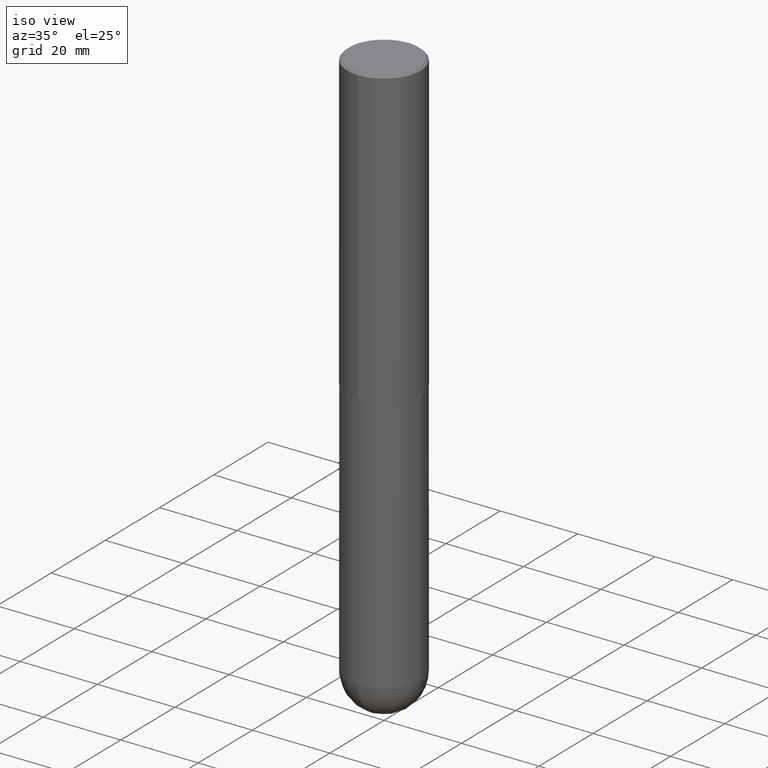
[diagram: clean part render]
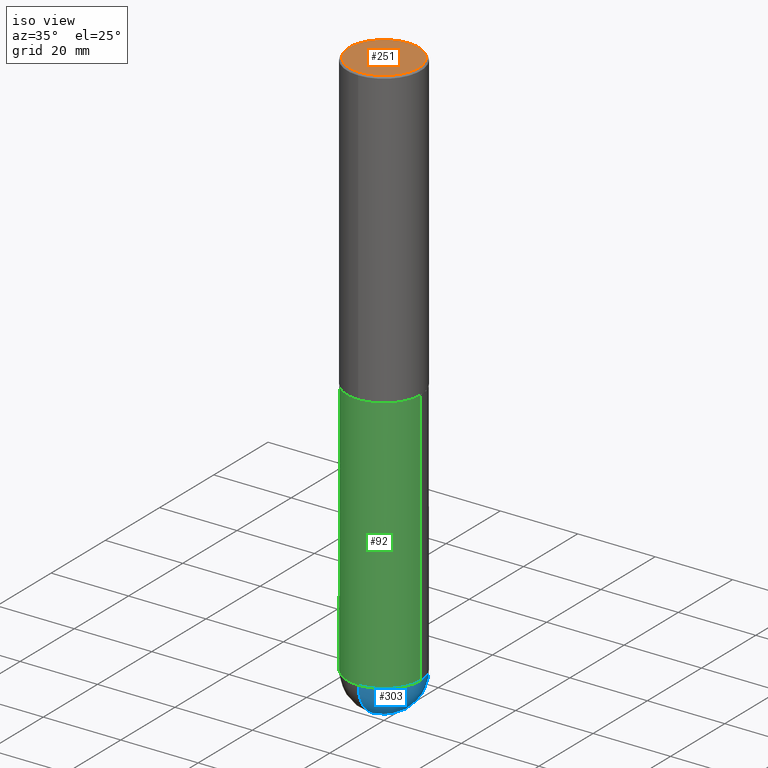
[diagram: same view with three faces highlighted in distinct colors, each labeled with its STEP entity id]
A machine part, iso view with three faces highlighted in distinct colors.
Their STEP definitions:

[orange] entity #251 — the highlighted planar face has unit normal (0, -0, -1).
#15 = VERTEX_POINT ( 'NONE', #324 ) ;
#34 = CARTESIAN_POINT ( 'NONE',  ( 2.478951750578630520E-15, 0.3550000000000009259, -1.713224165233305513E-15 ) ) ;
#42 = ORIENTED_EDGE ( 'NONE', *, *, #385, .T. ) ;
#71 = DIRECTION ( 'NONE',  ( 2.445691460240369509E-29, -3.491162485563369808E-15, -1.000000000000000000 ) ) ;
#102 = DIRECTION ( 'NONE',  ( -6.982962677686265133E-15, -1.000000000000000000, 3.491162485563369808E-15 ) ) ;
#103 = AXIS2_PLACEMENT_3D ( 'NONE', #305, #119, #353 ) ;
#119 = DIRECTION ( 'NONE',  ( -2.445691460240369790E-29, 3.491162485563369808E-15, 1.000000000000000000 ) ) ;
#133 = CARTESIAN_POINT ( 'NONE',  ( 2.317837963926793501E-44, -3.308654864616693600E-30, -9.477229657166117026E-16 ) ) ;
#148 = PLANE ( 'NONE',  #409 ) ;
#153 = CIRCLE ( 'NONE', #343, 0.3550000000000009259 ) ;
#157 = FACE_OUTER_BOUND ( 'NONE', #240, .T. ) ;
#164 = DIRECTION ( 'NONE',  ( -2.445691460240369790E-29, 3.491162485563369808E-15, 1.000000000000000000 ) ) ;
#207 = ORIENTED_EDGE ( 'NONE', *, *, #322, .T. ) ;
#240 = EDGE_LOOP ( 'NONE', ( #207, #42 ) ) ;
#251 = ADVANCED_FACE ( 'NONE', ( #157 ), #148, .F. ) ;
#272 = CIRCLE ( 'NONE', #103, 0.3550000000000009259 ) ;
#305 = CARTESIAN_POINT ( 'NONE',  ( 2.317837963926793501E-44, -3.308654864616693600E-30, -9.477229657166117026E-16 ) ) ;
#322 = EDGE_CURVE ( 'NONE', #15, #405, #272, .T. ) ;
#324 = CARTESIAN_POINT ( 'NONE',  ( 2.548781377355490268E-15, 0.3550000000000009259, -2.187085648091611168E-15 ) ) ;
#343 = AXIS2_PLACEMENT_3D ( 'NONE', #133, #164, #102 ) ;
#349 = DIRECTION ( 'NONE',  ( 6.982962677686265922E-15, 1.000000000000000000, -3.491162485563369808E-15 ) ) ;
#353 = DIRECTION ( 'NONE',  ( -6.982962677686265133E-15, -1.000000000000000000, 3.491162485563369808E-15 ) ) ;
#385 = EDGE_CURVE ( 'NONE', #405, #15, #153, .T. ) ;
#386 = CARTESIAN_POINT ( 'NONE',  ( -2.504081769186611371E-15, -0.3550000000000009259, 2.916397166583878117E-16 ) ) ;
#405 = VERTEX_POINT ( 'NONE', #386 ) ;
#409 = AXIS2_PLACEMENT_3D ( 'NONE', #34, #71, #349 ) ;

[blue] entity #303 — the highlighted spherical surface has radius 9.525 mm.
#2 = CARTESIAN_POINT ( 'NONE',  ( 0.3750000000000001110, -1.767562427789342178E-14, -5.625000000000000000 ) ) ;
#5 = VERTEX_POINT ( 'NONE', #10 ) ;
#10 = CARTESIAN_POINT ( 'NONE',  ( 2.618611004132489250E-15, 0.3749999999999805711, -5.625000000000000888 ) ) ;
#17 = DIRECTION ( 'NONE',  ( -7.105427357600999492E-15, -1.000000000000000000, 0.000000000000000000 ) ) ;
#19 = EDGE_CURVE ( 'NONE', #226, #5, #177, .T. ) ;
#22 = CIRCLE ( 'NONE', #382, 0.3750000000000001110 ) ;
#38 = AXIS2_PLACEMENT_3D ( 'NONE', #228, #389, #227 ) ;
#55 = DIRECTION ( 'NONE',  ( -2.445468806185136597E-29, 3.491481338843145583E-15, 1.000000000000000000 ) ) ;
#65 = DIRECTION ( 'NONE',  ( -1.000000000000000000, 6.982962677686266711E-15, -4.883557194083113462E-29 ) ) ;
#66 = ORIENTED_EDGE ( 'NONE', *, *, #396, .F. ) ;
#69 = FACE_OUTER_BOUND ( 'NONE', #100, .T. ) ;
#94 = ORIENTED_EDGE ( 'NONE', *, *, #19, .T. ) ;
#97 = CARTESIAN_POINT ( 'NONE',  ( 1.342464225687750823E-28, -2.011376489913274799E-14, -5.625000000000000000 ) ) ;
#100 = EDGE_LOOP ( 'NONE', ( #66, #94, #308, #348 ) ) ;
#124 = DIRECTION ( 'NONE',  ( 6.982962677686266711E-15, 1.000000000000000000, -2.913971193241873667E-15 ) ) ;
#135 = CIRCLE ( 'NONE', #336, 0.3750000000000001110 ) ;
#150 = DIRECTION ( 'NONE',  ( -2.445468806185136597E-29, 3.491481338843145583E-15, 1.000000000000000000 ) ) ;
#172 = DIRECTION ( 'NONE',  ( 1.000000000000000000, -6.982962677686270655E-15, 0.000000000000000000 ) ) ;
#177 = CIRCLE ( 'NONE', #38, 0.3750000000000009437 ) ;
#193 = CARTESIAN_POINT ( 'NONE',  ( 1.342464225687750823E-28, -2.011376489913274799E-14, -5.625000000000000000 ) ) ;
#197 = CIRCLE ( 'NONE', #391, 0.3750000000000009437 ) ;
#208 = SPHERICAL_SURFACE ( 'NONE', #289, 0.3750000000000009437 ) ;
#212 = CARTESIAN_POINT ( 'NONE',  ( 1.435772742711905261E-28, -2.140010827371491963E-14, -6.000000000000001776 ) ) ;
#226 = VERTEX_POINT ( 'NONE', #212 ) ;
#227 = DIRECTION ( 'NONE',  ( 6.982962677686265922E-15, 1.000000000000000000, 0.000000000000000000 ) ) ;
#228 = CARTESIAN_POINT ( 'NONE',  ( 1.342464225687750823E-28, -2.011376489913274799E-14, -5.625000000000000000 ) ) ;
#242 = CARTESIAN_POINT ( 'NONE',  ( 1.375576203479139336E-28, -1.963958253099269612E-14, -5.625000000000000000 ) ) ;
#244 = VERTEX_POINT ( 'NONE', #270 ) ;
#257 = DIRECTION ( 'NONE',  ( -1.000000000000000000, 7.105427357601001070E-15, -4.926315508542082329E-29 ) ) ;
#267 = VERTEX_POINT ( 'NONE', #2 ) ;
#270 = CARTESIAN_POINT ( 'NONE',  ( -2.664535259100242380E-15, -0.3750000000000204281, -5.624999999999999112 ) ) ;
#289 = AXIS2_PLACEMENT_3D ( 'NONE', #97, #65, #124 ) ;
#303 = ADVANCED_FACE ( 'NONE', ( #69 ), #208, .T. ) ;
#308 = ORIENTED_EDGE ( 'NONE', *, *, #374, .F. ) ;
#313 = DIRECTION ( 'NONE',  ( 1.000000000000000000, -6.982962677686270655E-15, 0.000000000000000000 ) ) ;
#321 = CARTESIAN_POINT ( 'NONE',  ( 1.375576203479139336E-28, -1.963958253099269612E-14, -5.625000000000000000 ) ) ;
#323 = EDGE_CURVE ( 'NONE', #244, #267, #22, .T. ) ;
#336 = AXIS2_PLACEMENT_3D ( 'NONE', #321, #55, #172 ) ;
#348 = ORIENTED_EDGE ( 'NONE', *, *, #323, .F. ) ;
#374 = EDGE_CURVE ( 'NONE', #267, #5, #135, .T. ) ;
#382 = AXIS2_PLACEMENT_3D ( 'NONE', #242, #150, #313 ) ;
#389 = DIRECTION ( 'NONE',  ( 1.000000000000000000, -6.982962677686265922E-15, 4.883557194083112340E-29 ) ) ;
#391 = AXIS2_PLACEMENT_3D ( 'NONE', #193, #257, #17 ) ;
#396 = EDGE_CURVE ( 'NONE', #226, #244, #197, .T. ) ;

[green] entity #92 — the highlighted cylindrical surface (partial cylindrical patch) has radius 9.525 mm, axis along (-0, 0, 1).
#2 = CARTESIAN_POINT ( 'NONE',  ( 0.3750000000000001110, -1.767562427789342178E-14, -5.625000000000000000 ) ) ;
#7 = ORIENTED_EDGE ( 'NONE', *, *, #323, .T. ) ;
#14 = AXIS2_PLACEMENT_3D ( 'NONE', #260, #395, #307 ) ;
#21 = AXIS2_PLACEMENT_3D ( 'NONE', #356, #194, #104 ) ;
#22 = CIRCLE ( 'NONE', #382, 0.3750000000000001110 ) ;
#40 = ORIENTED_EDGE ( 'NONE', *, *, #225, .F. ) ;
#50 = EDGE_LOOP ( 'NONE', ( #126, #182, #7, #403, #40 ) ) ;
#68 = VERTEX_POINT ( 'NONE', #327 ) ;
#76 = VECTOR ( 'NONE', #383, 39.37007874015748143 ) ;
#81 = CARTESIAN_POINT ( 'NONE',  ( -0.3750000000000000555, -1.239247801466068975E-14, -3.000000000000000444 ) ) ;
#92 = ADVANCED_FACE ( 'NONE', ( #163 ), #362, .T. ) ;
#99 = CARTESIAN_POINT ( 'NONE',  ( 7.336406418555409790E-29, -1.047444401652943635E-14, -3.000000000000000444 ) ) ;
#104 = DIRECTION ( 'NONE',  ( 1.000000000000000000, -6.982962677686265922E-15, 4.876176775795935793E-29 ) ) ;
#106 = LINE ( 'NONE', #286, #366 ) ;
#120 = CIRCLE ( 'NONE', #247, 0.3750000000000000555 ) ;
#123 = VERTEX_POINT ( 'NONE', #320 ) ;
#126 = ORIENTED_EDGE ( 'NONE', *, *, #361, .F. ) ;
#150 = DIRECTION ( 'NONE',  ( -2.445468806185136597E-29, 3.491481338843145583E-15, 1.000000000000000000 ) ) ;
#161 = EDGE_CURVE ( 'NONE', #68, #244, #330, .T. ) ;
#163 = FACE_OUTER_BOUND ( 'NONE', #50, .T. ) ;
#182 = ORIENTED_EDGE ( 'NONE', *, *, #161, .T. ) ;
#194 = DIRECTION ( 'NONE',  ( -2.445468806185136597E-29, 3.491481338843145583E-15, 1.000000000000000000 ) ) ;
#195 = DIRECTION ( 'NONE',  ( -2.445468806185136877E-29, 3.491481338843145188E-15, 1.000000000000000000 ) ) ;
#213 = EDGE_CURVE ( 'NONE', #267, #123, #347, .T. ) ;
#225 = EDGE_CURVE ( 'NONE', #378, #123, #120, .T. ) ;
#242 = CARTESIAN_POINT ( 'NONE',  ( 1.375576203479139336E-28, -1.963958253099269612E-14, -5.625000000000000000 ) ) ;
#244 = VERTEX_POINT ( 'NONE', #270 ) ;
#247 = AXIS2_PLACEMENT_3D ( 'NONE', #99, #268, #345 ) ;
#260 = CARTESIAN_POINT ( 'NONE',  ( 1.375576203479139336E-28, -1.963958253099269612E-14, -5.625000000000000000 ) ) ;
#267 = VERTEX_POINT ( 'NONE', #2 ) ;
#268 = DIRECTION ( 'NONE',  ( -2.445468806185136597E-29, 3.491481338843145583E-15, 1.000000000000000000 ) ) ;
#270 = CARTESIAN_POINT ( 'NONE',  ( -2.664535259100242380E-15, -0.3750000000000204281, -5.624999999999999112 ) ) ;
#286 = CARTESIAN_POINT ( 'NONE',  ( -0.3750000000000001110, 2.664535259100376486E-15, -1.844600658845590159E-29 ) ) ;
#307 = DIRECTION ( 'NONE',  ( 1.000000000000000000, -6.982962677686270655E-15, 0.000000000000000000 ) ) ;
#313 = DIRECTION ( 'NONE',  ( 1.000000000000000000, -6.982962677686270655E-15, 0.000000000000000000 ) ) ;
#320 = CARTESIAN_POINT ( 'NONE',  ( 0.3750000000000000555, -1.309305502066178795E-14, -3.000000000000000444 ) ) ;
#323 = EDGE_CURVE ( 'NONE', #244, #267, #22, .T. ) ;
#327 = CARTESIAN_POINT ( 'NONE',  ( -0.3750000000000001110, -1.239247801466069291E-14, -5.625000000000000000 ) ) ;
#330 = CIRCLE ( 'NONE', #14, 0.3750000000000001110 ) ;
#345 = DIRECTION ( 'NONE',  ( 1.000000000000000000, -6.982962677686266711E-15, 0.000000000000000000 ) ) ;
#347 = LINE ( 'NONE', #375, #76 ) ;
#356 = CARTESIAN_POINT ( 'NONE',  ( 0.000000000000000000, 0.000000000000000000, 0.000000000000000000 ) ) ;
#361 = EDGE_CURVE ( 'NONE', #68, #378, #106, .T. ) ;
#362 = CYLINDRICAL_SURFACE ( 'NONE', #21, 0.3750000000000001110 ) ;
#366 = VECTOR ( 'NONE', #195, 39.37007874015748143 ) ;
#375 = CARTESIAN_POINT ( 'NONE',  ( 0.3750000000000001110, -2.618611004132350411E-15, 1.828566290923476483E-29 ) ) ;
#378 = VERTEX_POINT ( 'NONE', #81 ) ;
#382 = AXIS2_PLACEMENT_3D ( 'NONE', #242, #150, #313 ) ;
#383 = DIRECTION ( 'NONE',  ( -2.445468806185136877E-29, 3.491481338843145188E-15, 1.000000000000000000 ) ) ;
#395 = DIRECTION ( 'NONE',  ( -2.445468806185136597E-29, 3.491481338843145583E-15, 1.000000000000000000 ) ) ;
#403 = ORIENTED_EDGE ( 'NONE', *, *, #213, .T. ) ;